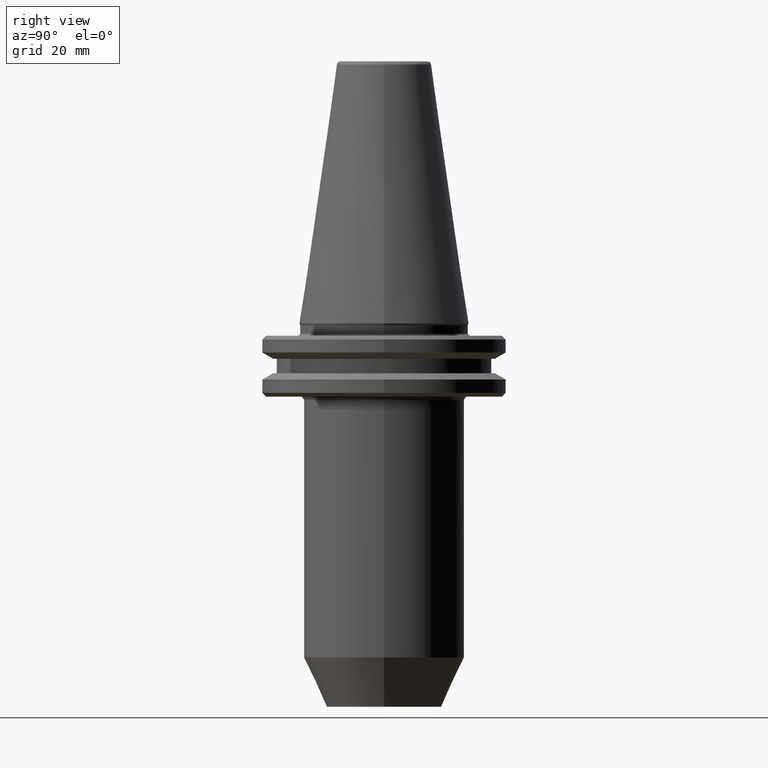
[diagram: clean part render]
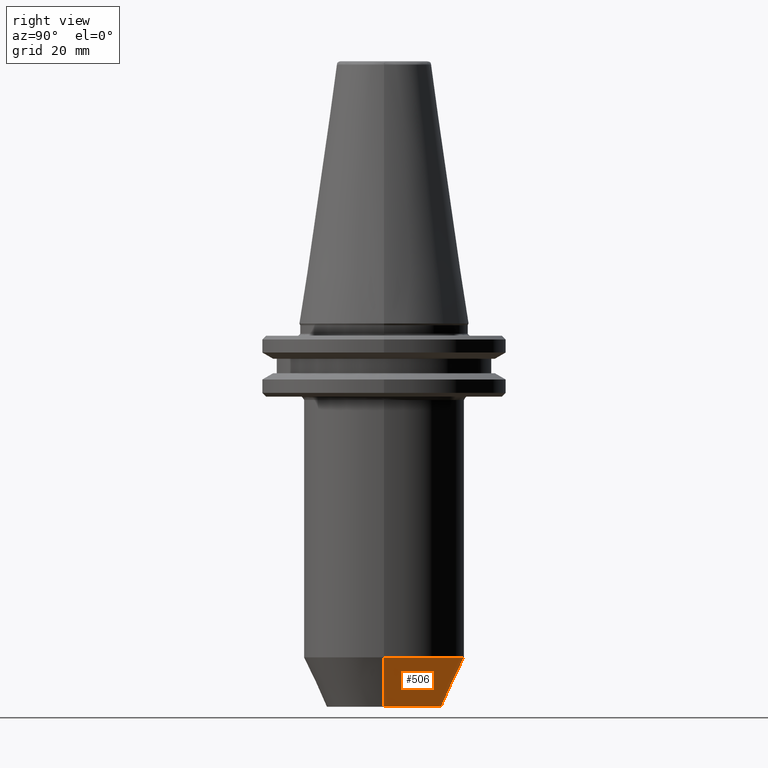
[diagram: same view with one face highlighted and labeled with its STEP entity id]
A machine part, right view. The second image highlights one B-rep face of the part: STEP entity #506.
In plain terms, the highlighted conical surface has half-angle 25 deg.
Its self-contained STEP definition (entity closure, byte-faithful):
#7 = AXIS2_PLACEMENT_3D ( 'NONE', #602, #601, #604 ) ;
#24 = CARTESIAN_POINT ( 'NONE',  ( -20.99999999999999300, 2.571758278209440900E-015, -87.13295847700000300 ) ) ;
#64 = EDGE_CURVE ( 'NONE', #693, #1048, #768, .T. ) ;
#73 = EDGE_CURVE ( 'NONE', #342, #1195, #965, .T. ) ;
#116 = CARTESIAN_POINT ( 'NONE',  ( 20.99999999999999300, 0.0000000000000000000, -87.13295847700000300 ) ) ;
#117 = ORIENTED_EDGE ( 'NONE', *, *, #73, .T. ) ;
#162 = CIRCLE ( 'NONE', #192, 21.00000000000000000 ) ;
#192 = AXIS2_PLACEMENT_3D ( 'NONE', #591, #590, #588 ) ;
#287 = FACE_OUTER_BOUND ( 'NONE', #1205, .T. ) ;
#290 = CARTESIAN_POINT ( 'NONE',  ( 14.99999999999996100, 0.0000000000000000000, -100.0000000000000900 ) ) ;
#342 = VERTEX_POINT ( 'NONE', #413 ) ;
#365 = AXIS2_PLACEMENT_3D ( 'NONE', #1308, #872, #1368 ) ;
#382 = ORIENTED_EDGE ( 'NONE', *, *, #64, .F. ) ;
#413 = CARTESIAN_POINT ( 'NONE',  ( -14.99999999999996100, 2.204364238465233100E-015, -100.0000000000000900 ) ) ;
#506 = ADVANCED_FACE ( 'NONE', ( #287 ), #1354, .T. ) ;
#523 = EDGE_CURVE ( 'NONE', #1048, #1195, #162, .T. ) ;
#556 = ORIENTED_EDGE ( 'NONE', *, *, #1252, .T. ) ;
#588 = DIRECTION ( 'NONE',  ( 1.000000000000000000, 0.0000000000000000000, 0.0000000000000000000 ) ) ;
#590 = DIRECTION ( 'NONE',  ( 0.0000000000000000000, 0.0000000000000000000, 1.000000000000000000 ) ) ;
#591 = CARTESIAN_POINT ( 'NONE',  ( 0.0000000000000000000, 0.0000000000000000000, -87.13295847700000300 ) ) ;
#601 = DIRECTION ( 'NONE',  ( 0.0000000000000000000, 0.0000000000000000000, 1.000000000000000000 ) ) ;
#602 = CARTESIAN_POINT ( 'NONE',  ( 0.0000000000000000000, 0.0000000000000000000, -87.13295847700000300 ) ) ;
#604 = DIRECTION ( 'NONE',  ( 1.000000000000000000, 0.0000000000000000000, 0.0000000000000000000 ) ) ;
#693 = VERTEX_POINT ( 'NONE', #290 ) ;
#768 = LINE ( 'NONE', #1329, #1366 ) ;
#872 = DIRECTION ( 'NONE',  ( 0.0000000000000000000, 0.0000000000000000000, 1.000000000000000000 ) ) ;
#965 = LINE ( 'NONE', #1149, #1132 ) ;
#1048 = VERTEX_POINT ( 'NONE', #116 ) ;
#1056 = CIRCLE ( 'NONE', #365, 14.99999999999996100 ) ;
#1132 = VECTOR ( 'NONE', #1295, 1000.000000000000000 ) ;
#1149 = CARTESIAN_POINT ( 'NONE',  ( -20.99999999999999300, 2.571758278209440900E-015, -87.13295847700000300 ) ) ;
#1195 = VERTEX_POINT ( 'NONE', #24 ) ;
#1205 = EDGE_LOOP ( 'NONE', ( #556, #117, #1264, #382 ) ) ;
#1252 = EDGE_CURVE ( 'NONE', #693, #342, #1056, .T. ) ;
#1264 = ORIENTED_EDGE ( 'NONE', *, *, #523, .F. ) ;
#1290 = DIRECTION ( 'NONE',  ( 0.4226182617422463700, 0.0000000000000000000, 0.9063077870359286200 ) ) ;
#1295 = DIRECTION ( 'NONE',  ( -0.4226182617422463700, 5.175581015038603100E-017, 0.9063077870359286200 ) ) ;
#1308 = CARTESIAN_POINT ( 'NONE',  ( 0.0000000000000000000, 0.0000000000000000000, -100.0000000000000900 ) ) ;
#1329 = CARTESIAN_POINT ( 'NONE',  ( 20.99999999999999300, 0.0000000000000000000, -87.13295847700000300 ) ) ;
#1354 = CONICAL_SURFACE ( 'NONE', #7, 20.99999999999999300, 0.4363323130002892400 ) ;
#1366 = VECTOR ( 'NONE', #1290, 1000.000000000000000 ) ;
#1368 = DIRECTION ( 'NONE',  ( 1.000000000000000000, 0.0000000000000000000, 0.0000000000000000000 ) ) ;